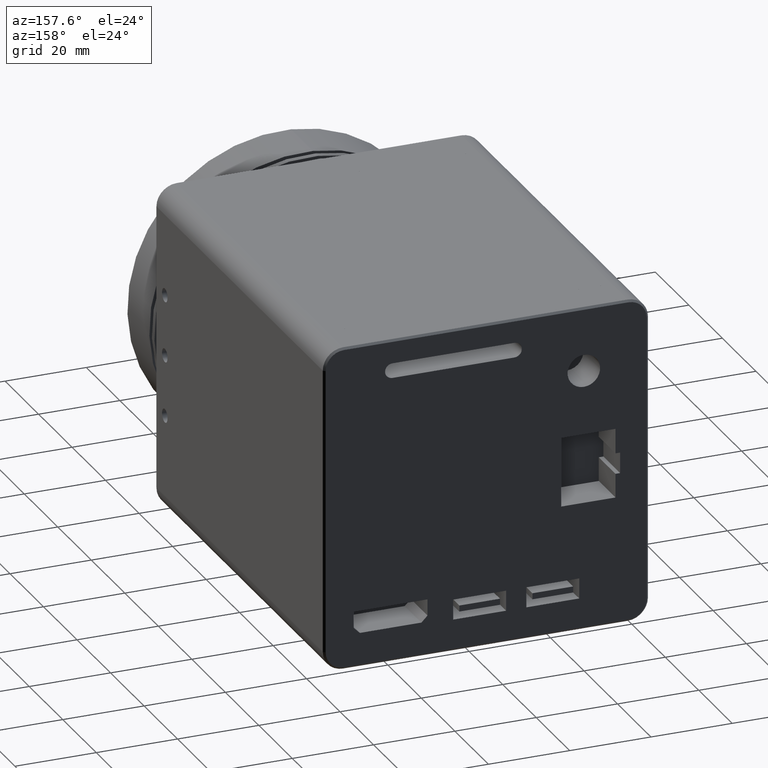
[diagram: clean part render]
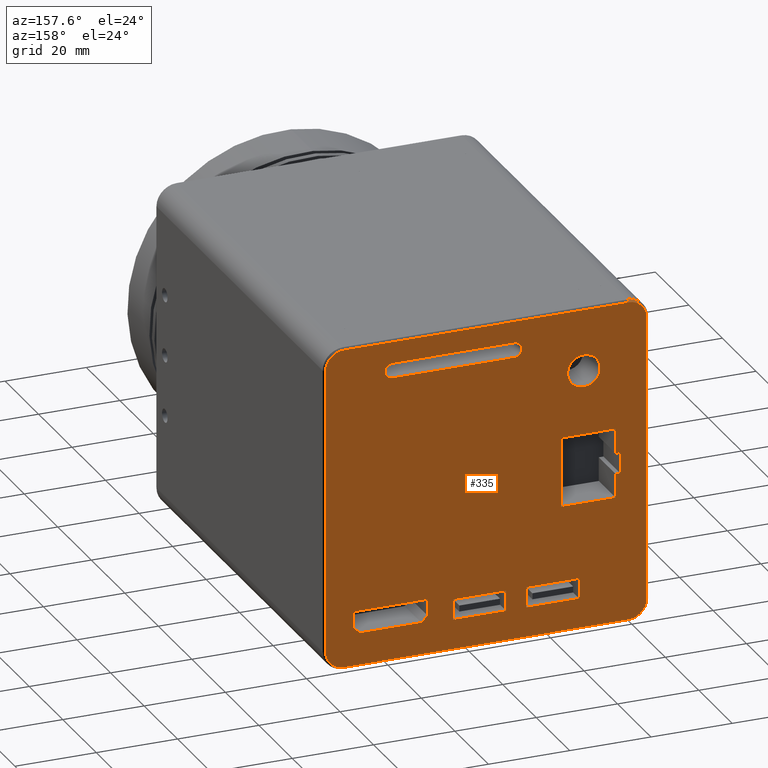
[diagram: same view with one face highlighted and labeled with its STEP entity id]
A machine part, auxiliary view. The second image highlights one B-rep face of the part: STEP entity #335.
In plain terms, the highlighted planar face has unit normal (0, 1, 0).
Its self-contained STEP definition (entity closure, byte-faithful):
#13 = VERTEX_POINT ( 'NONE', #241 ) ;
#16 = VERTEX_POINT ( 'NONE', #1556 ) ;
#17 = CARTESIAN_POINT ( 'NONE',  ( -5.596069762630644817, 63.60462753950338310, -32.18034408215361708 ) ) ;
#39 = VECTOR ( 'NONE', #3091, 1000.000000000000000 ) ;
#77 = VERTEX_POINT ( 'NONE', #2807 ) ;
#80 = CARTESIAN_POINT ( 'NONE',  ( 56.80124153498871209, 63.60462753950338310, -34.99999999999997868 ) ) ;
#96 = VERTEX_POINT ( 'NONE', #2365 ) ;
#97 = DIRECTION ( 'NONE',  ( 1.000000000000000000, 0.000000000000000000, 3.821893742971608445E-16 ) ) ;
#101 = LINE ( 'NONE', #132, #1257 ) ;
#104 = CARTESIAN_POINT ( 'NONE',  ( -17.69875846501125238, 63.60462753950338310, -39.50000000000000000 ) ) ;
#108 = CARTESIAN_POINT ( 'NONE',  ( -15.65465298148207474, 63.60462753950338310, -2.650576703533005229 ) ) ;
#126 = CARTESIAN_POINT ( 'NONE',  ( -6.737217932631413220, 63.60462753950338310, 28.31412987435849971 ) ) ;
#132 = CARTESIAN_POINT ( 'NONE',  ( 31.73906976340431285, 63.60462753950338310, -30.09904818078874200 ) ) ;
#133 = DIRECTION ( 'NONE',  ( -1.000000000000000000, -0.000000000000000000, -0.000000000000000000 ) ) ;
#137 = FACE_OUTER_BOUND ( 'NONE', #2646, .T. ) ;
#141 = EDGE_CURVE ( 'NONE', #620, #3427, #518, .T. ) ;
#142 = VECTOR ( 'NONE', #770, 1000.000000000000000 ) ;
#144 = DIRECTION ( 'NONE',  ( 0.000000000000000000, 1.000000000000000000, 0.000000000000000000 ) ) ;
#151 = LINE ( 'NONE', #3020, #3176 ) ;
#153 = CARTESIAN_POINT ( 'NONE',  ( -6.737217932631413220, 63.60462753950338310, 24.31412987435849971 ) ) ;
#175 = CARTESIAN_POINT ( 'NONE',  ( 25.40393023736935163, 63.60462753950338310, -32.18034408215361708 ) ) ;
#179 = DIRECTION ( 'NONE',  ( 0.000000000000000000, 0.000000000000000000, 1.000000000000000000 ) ) ;
#188 = ORIENTED_EDGE ( 'NONE', *, *, #517, .F. ) ;
#202 = CARTESIAN_POINT ( 'NONE',  ( -17.69875846501125238, 63.60462753950338310, -39.50000000000000000 ) ) ;
#223 = CARTESIAN_POINT ( 'NONE',  ( 31.73906976340431285, 63.60462753950338310, -26.06312775840561358 ) ) ;
#226 = VERTEX_POINT ( 'NONE', #571 ) ;
#231 = EDGE_CURVE ( 'NONE', #226, #2682, #1242, .T. ) ;
#240 = LINE ( 'NONE', #3423, #1311 ) ;
#241 = CARTESIAN_POINT ( 'NONE',  ( 25.40393023736935518, 63.60462753950338310, -27.18034408215362063 ) ) ;
#250 = EDGE_CURVE ( 'NONE', #1598, #2708, #1387, .T. ) ;
#256 = DIRECTION ( 'NONE',  ( 6.938893903907232322E-16, 0.000000000000000000, 1.000000000000000000 ) ) ;
#274 = CARTESIAN_POINT ( 'NONE',  ( 52.30124153498868367, 63.60462753950338310, -39.50000000000000000 ) ) ;
#296 = DIRECTION ( 'NONE',  ( -0.000000000000000000, -0.000000000000000000, -1.000000000000000000 ) ) ;
#304 = LINE ( 'NONE', #2636, #1639 ) ;
#319 = EDGE_CURVE ( 'NONE', #1782, #1052, #2920, .T. ) ;
#331 = VERTEX_POINT ( 'NONE', #175 ) ;
#335 = ADVANCED_FACE ( 'NONE', ( #2207, #1726, #1467, #887, #3267, #409, #137 ), #433, .T. ) ;
#343 = DIRECTION ( 'NONE',  ( 1.000000000000000000, 0.000000000000000000, 0.000000000000000000 ) ) ;
#363 = VERTEX_POINT ( 'NONE', #108 ) ;
#388 = CARTESIAN_POINT ( 'NONE',  ( 10.35434728517189207, 63.60462753950338310, 32.36370575113038228 ) ) ;
#390 = CARTESIAN_POINT ( 'NONE',  ( 31.73906976340431285, 63.60462753950338310, -26.06312775840561358 ) ) ;
#408 = ORIENTED_EDGE ( 'NONE', *, *, #711, .F. ) ;
#409 = FACE_BOUND ( 'NONE', #1882, .T. ) ;
#417 = CARTESIAN_POINT ( 'NONE',  ( 31.73906976340431285, 63.60462753950338310, -30.09904818078874200 ) ) ;
#433 = PLANE ( 'NONE',  #1015 ) ;
#455 = DIRECTION ( 'NONE',  ( 0.000000000000000000, 0.000000000000000000, 1.000000000000000000 ) ) ;
#460 = CARTESIAN_POINT ( 'NONE',  ( 40.35434728517189029, 63.60462753950338310, 32.36370575113038228 ) ) ;
#478 = CARTESIAN_POINT ( 'NONE',  ( 10.35434728517189207, 63.60462753950338310, 30.53370575113038043 ) ) ;
#497 = VECTOR ( 'NONE', #1088, 1000.000000000000000 ) ;
#499 = DIRECTION ( 'NONE',  ( -1.000000000000000000, 0.000000000000000000, 0.000000000000000000 ) ) ;
#502 = EDGE_LOOP ( 'NONE', ( #2171, #2542, #1293, #2611 ) ) ;
#510 = CARTESIAN_POINT ( 'NONE',  ( 12.40393023736935696, 63.60462753950338310, -27.18034408215362063 ) ) ;
#517 = EDGE_CURVE ( 'NONE', #3427, #2517, #3128, .T. ) ;
#518 = LINE ( 'NONE', #2622, #3017 ) ;
#538 = ORIENTED_EDGE ( 'NONE', *, *, #141, .F. ) ;
#543 = VECTOR ( 'NONE', #499, 1000.000000000000000 ) ;
#550 = VECTOR ( 'NONE', #714, 1000.000000000000000 ) ;
#554 = CARTESIAN_POINT ( 'NONE',  ( 49.88458670343788981, 63.60462753950338310, -30.09904818078874200 ) ) ;
#561 = CARTESIAN_POINT ( 'NONE',  ( -14.51992528322585585, 63.60462753950338310, 8.546483831395075725 ) ) ;
#571 = CARTESIAN_POINT ( 'NONE',  ( -22.19875846501127015, 63.60462753950338310, 34.99999999999997158 ) ) ;
#582 = AXIS2_PLACEMENT_3D ( 'NONE', #2140, #2378, #2696 ) ;
#610 = VERTEX_POINT ( 'NONE', #2641 ) ;
#620 = VERTEX_POINT ( 'NONE', #2136 ) ;
#627 = CARTESIAN_POINT ( 'NONE',  ( 48.38458670343788981, 63.60462753950338310, -31.59904818078874200 ) ) ;
#630 = LINE ( 'NONE', #2768, #1373 ) ;
#641 = AXIS2_PLACEMENT_3D ( 'NONE', #2726, #2205, #3265 ) ;
#693 = VERTEX_POINT ( 'NONE', #1163 ) ;
#703 = VERTEX_POINT ( 'NONE', #2740 ) ;
#711 = EDGE_CURVE ( 'NONE', #3161, #3270, #151, .T. ) ;
#714 = DIRECTION ( 'NONE',  ( 1.000000000000000000, 0.000000000000000000, 0.000000000000000000 ) ) ;
#718 = CARTESIAN_POINT ( 'NONE',  ( -17.69875846501127370, 63.60462753950338310, 39.50000000000000711 ) ) ;
#720 = DIRECTION ( 'NONE',  ( 6.938893903907232322E-16, 0.000000000000000000, 1.000000000000000000 ) ) ;
#739 = VERTEX_POINT ( 'NONE', #104 ) ;
#740 = ORIENTED_EDGE ( 'NONE', *, *, #2652, .F. ) ;
#743 = VERTEX_POINT ( 'NONE', #1964 ) ;
#753 = CIRCLE ( 'NONE', #2298, 1.829999999999998295 ) ;
#766 = CIRCLE ( 'NONE', #3197, 4.499999999999997335 ) ;
#770 = DIRECTION ( 'NONE',  ( 0.000000000000000000, 0.000000000000000000, 1.000000000000000000 ) ) ;
#771 = ORIENTED_EDGE ( 'NONE', *, *, #3290, .T. ) ;
#796 = VECTOR ( 'NONE', #296, 1000.000000000000000 ) ;
#808 = EDGE_LOOP ( 'NONE', ( #3296, #740, #2827, #2979, #408, #2092 ) ) ;
#811 = EDGE_CURVE ( 'NONE', #363, #3216, #1215, .T. ) ;
#816 = EDGE_CURVE ( 'NONE', #1164, #1081, #2076, .T. ) ;
#829 = CARTESIAN_POINT ( 'NONE',  ( 48.38458670343788981, 63.60462753950338310, -31.59904818078874200 ) ) ;
#831 = VERTEX_POINT ( 'NONE', #1828 ) ;
#844 = DIRECTION ( 'NONE',  ( 1.000000000000000000, 0.000000000000000000, 0.000000000000000000 ) ) ;
#872 = CARTESIAN_POINT ( 'NONE',  ( -15.65465298148207474, 63.60462753950338310, -2.650576703533005229 ) ) ;
#880 = EDGE_CURVE ( 'NONE', #743, #610, #1076, .T. ) ;
#881 = DIRECTION ( 'NONE',  ( 0.000000000000000000, 0.000000000000000000, 1.000000000000000000 ) ) ;
#887 = FACE_BOUND ( 'NONE', #1167, .T. ) ;
#899 = VERTEX_POINT ( 'NONE', #1759 ) ;
#944 = LINE ( 'NONE', #2278, #1752 ) ;
#960 = VECTOR ( 'NONE', #2954, 1000.000000000000000 ) ;
#964 = EDGE_CURVE ( 'NONE', #2397, #2263, #2033, .T. ) ;
#970 = LINE ( 'NONE', #2031, #2414 ) ;
#978 = VECTOR ( 'NONE', #2878, 1000.000000000000000 ) ;
#980 = ORIENTED_EDGE ( 'NONE', *, *, #2377, .F. ) ;
#991 = DIRECTION ( 'NONE',  ( 0.000000000000000000, 1.000000000000000000, 0.000000000000000000 ) ) ;
#1015 = AXIS2_PLACEMENT_3D ( 'NONE', #3042, #3283, #3057 ) ;
#1027 = EDGE_CURVE ( 'NONE', #610, #1164, #304, .T. ) ;
#1037 = CARTESIAN_POINT ( 'NONE',  ( 33.23906976340431640, 63.60462753950338310, -31.59904818078874200 ) ) ;
#1051 = DIRECTION ( 'NONE',  ( -1.000000000000000000, -0.000000000000000000, -0.000000000000000000 ) ) ;
#1052 = VERTEX_POINT ( 'NONE', #1895 ) ;
#1055 = DIRECTION ( 'NONE',  ( -0.000000000000000000, -0.000000000000000000, -1.000000000000000000 ) ) ;
#1076 = CIRCLE ( 'NONE', #2624, 4.499999999999997335 ) ;
#1081 = VERTEX_POINT ( 'NONE', #274 ) ;
#1088 = DIRECTION ( 'NONE',  ( 1.000000000000000000, 0.000000000000000000, 0.000000000000000000 ) ) ;
#1099 = VERTEX_POINT ( 'NONE', #2372 ) ;
#1106 = ORIENTED_EDGE ( 'NONE', *, *, #1278, .F. ) ;
#1136 = ORIENTED_EDGE ( 'NONE', *, *, #1027, .T. ) ;
#1141 = CARTESIAN_POINT ( 'NONE',  ( -14.51992528322585585, 63.60462753950338310, -2.650576703533005229 ) ) ;
#1150 = ORIENTED_EDGE ( 'NONE', *, *, #2290, .T. ) ;
#1157 = CARTESIAN_POINT ( 'NONE',  ( 40.35434728517189029, 63.60462753950338310, 30.53370575113038043 ) ) ;
#1163 = CARTESIAN_POINT ( 'NONE',  ( 10.35434728517189207, 63.60462753950338310, 34.19370575113037347 ) ) ;
#1164 = VERTEX_POINT ( 'NONE', #80 ) ;
#1167 = EDGE_LOOP ( 'NONE', ( #2499, #2716, #2366, #3130, #3384, #2427, #188, #538 ) ) ;
#1172 = LINE ( 'NONE', #1141, #3369 ) ;
#1195 = DIRECTION ( 'NONE',  ( 1.000000000000000000, 0.000000000000000000, 0.000000000000000000 ) ) ;
#1202 = VERTEX_POINT ( 'NONE', #390 ) ;
#1215 = LINE ( 'NONE', #872, #3350 ) ;
#1242 = CIRCLE ( 'NONE', #582, 4.499999999999997335 ) ;
#1246 = DIRECTION ( 'NONE',  ( 0.000000000000000000, 0.000000000000000000, 1.000000000000000000 ) ) ;
#1254 = CARTESIAN_POINT ( 'NONE',  ( -22.19875846501127725, 63.60462753950338310, 34.99999999999997158 ) ) ;
#1257 = VECTOR ( 'NONE', #3051, 1000.000000000000114 ) ;
#1262 = VERTEX_POINT ( 'NONE', #2598 ) ;
#1278 = EDGE_CURVE ( 'NONE', #331, #2397, #2580, .T. ) ;
#1279 = ORIENTED_EDGE ( 'NONE', *, *, #2024, .F. ) ;
#1291 = EDGE_LOOP ( 'NONE', ( #2078, #2343, #1492, #1106 ) ) ;
#1293 = ORIENTED_EDGE ( 'NONE', *, *, #1401, .F. ) ;
#1311 = VECTOR ( 'NONE', #256, 1000.000000000000000 ) ;
#1318 = CIRCLE ( 'NONE', #1545, 1.829999999999998295 ) ;
#1331 = CARTESIAN_POINT ( 'NONE',  ( 10.35434728517189207, 63.60462753950338310, 30.53370575113038043 ) ) ;
#1338 = LINE ( 'NONE', #1907, #1381 ) ;
#1340 = DIRECTION ( 'NONE',  ( 0.000000000000000000, 0.000000000000000000, -1.000000000000000000 ) ) ;
#1354 = CARTESIAN_POINT ( 'NONE',  ( -15.65465298148207474, 63.60462753950338310, 2.452624897441086471 ) ) ;
#1373 = VECTOR ( 'NONE', #1195, 1000.000000000000000 ) ;
#1381 = VECTOR ( 'NONE', #1055, 1000.000000000000000 ) ;
#1387 = LINE ( 'NONE', #1331, #960 ) ;
#1401 = EDGE_CURVE ( 'NONE', #3334, #1598, #753, .T. ) ;
#1420 = ORIENTED_EDGE ( 'NONE', *, *, #2607, .T. ) ;
#1465 = ORIENTED_EDGE ( 'NONE', *, *, #2186, .F. ) ;
#1467 = FACE_BOUND ( 'NONE', #3221, .T. ) ;
#1469 = VECTOR ( 'NONE', #720, 1000.000000000000000 ) ;
#1492 = ORIENTED_EDGE ( 'NONE', *, *, #964, .F. ) ;
#1540 = ORIENTED_EDGE ( 'NONE', *, *, #2546, .T. ) ;
#1545 = AXIS2_PLACEMENT_3D ( 'NONE', #388, #144, #881 ) ;
#1551 = DIRECTION ( 'NONE',  ( 0.000000000000000000, 1.000000000000000000, 0.000000000000000000 ) ) ;
#1556 = CARTESIAN_POINT ( 'NONE',  ( -22.19875846501129146, 63.60462753950338310, -34.99999999999997868 ) ) ;
#1579 = CARTESIAN_POINT ( 'NONE',  ( 40.35434728517189029, 63.60462753950338310, 34.19370575113038058 ) ) ;
#1589 = CARTESIAN_POINT ( 'NONE',  ( 12.40393023736935341, 63.60462753950338310, -32.18034408215361708 ) ) ;
#1598 = VERTEX_POINT ( 'NONE', #1157 ) ;
#1599 = VECTOR ( 'NONE', #97, 1000.000000000000000 ) ;
#1625 = EDGE_CURVE ( 'NONE', #693, #3334, #3287, .T. ) ;
#1639 = VECTOR ( 'NONE', #1340, 1000.000000000000000 ) ;
#1670 = CARTESIAN_POINT ( 'NONE',  ( 10.35434728517189207, 63.60462753950338310, 34.19370575113038058 ) ) ;
#1678 = ORIENTED_EDGE ( 'NONE', *, *, #2679, .F. ) ;
#1686 = CARTESIAN_POINT ( 'NONE',  ( -15.65465298148207474, 63.60462753950338310, 2.452624897441086471 ) ) ;
#1706 = CARTESIAN_POINT ( 'NONE',  ( -14.51992528322585585, 63.60462753950338310, -2.650576703533005229 ) ) ;
#1723 = DIRECTION ( 'NONE',  ( 0.000000000000000000, 0.000000000000000000, 1.000000000000000000 ) ) ;
#1726 = FACE_BOUND ( 'NONE', #1291, .T. ) ;
#1731 = LINE ( 'NONE', #417, #1810 ) ;
#1752 = VECTOR ( 'NONE', #179, 1000.000000000000000 ) ;
#1759 = CARTESIAN_POINT ( 'NONE',  ( 31.73906976340431285, 63.60462753950338310, -30.09904818078874200 ) ) ;
#1779 = CARTESIAN_POINT ( 'NONE',  ( 12.40393023736935696, 63.60462753950338310, -27.18034408215362063 ) ) ;
#1782 = VERTEX_POINT ( 'NONE', #2521 ) ;
#1788 = EDGE_CURVE ( 'NONE', #1262, #1099, #944, .T. ) ;
#1810 = VECTOR ( 'NONE', #455, 1000.000000000000000 ) ;
#1811 = DIRECTION ( 'NONE',  ( 0.000000000000000000, 1.000000000000000000, 0.000000000000000000 ) ) ;
#1828 = CARTESIAN_POINT ( 'NONE',  ( 7.403930237369356071, 63.60462753950338310, -27.18034408215362063 ) ) ;
#1832 = EDGE_CURVE ( 'NONE', #899, #1202, #1731, .T. ) ;
#1839 = CARTESIAN_POINT ( 'NONE',  ( -17.69875846501128791, 63.60462753950338310, -35.00000000000000000 ) ) ;
#1862 = CARTESIAN_POINT ( 'NONE',  ( 25.40393023736935518, 63.60462753950338310, -32.18034408215361708 ) ) ;
#1882 = EDGE_LOOP ( 'NONE', ( #1279 ) ) ;
#1895 = CARTESIAN_POINT ( 'NONE',  ( 49.88458670343788981, 63.60462753950338310, -30.09904818078874200 ) ) ;
#1897 = EDGE_CURVE ( 'NONE', #2570, #77, #2610, .T. ) ;
#1907 = CARTESIAN_POINT ( 'NONE',  ( -1.171567029984645014, 63.60462753950338310, -8.546483831395088160 ) ) ;
#1926 = CARTESIAN_POINT ( 'NONE',  ( -14.51992528322585585, 63.60462753950338310, -8.546483831395088160 ) ) ;
#1927 = VECTOR ( 'NONE', #3125, 1000.000000000000000 ) ;
#1934 = DIRECTION ( 'NONE',  ( 0.000000000000000000, 0.000000000000000000, 1.000000000000000000 ) ) ;
#1964 = CARTESIAN_POINT ( 'NONE',  ( 52.30124153498869077, 63.60462753950338310, 39.50000000000000711 ) ) ;
#1992 = DIRECTION ( 'NONE',  ( -1.000000000000000000, -0.000000000000000000, -0.000000000000000000 ) ) ;
#2024 = EDGE_CURVE ( 'NONE', #2730, #2730, #2086, .T. ) ;
#2026 = ORIENTED_EDGE ( 'NONE', *, *, #880, .T. ) ;
#2031 = CARTESIAN_POINT ( 'NONE',  ( 7.403930237369356071, 63.60462753950338310, -32.18034408215361708 ) ) ;
#2033 = LINE ( 'NONE', #2841, #1469 ) ;
#2049 = LINE ( 'NONE', #223, #978 ) ;
#2064 = CARTESIAN_POINT ( 'NONE',  ( 7.403930237369356071, 63.60462753950338310, -32.18034408215361708 ) ) ;
#2076 = CIRCLE ( 'NONE', #641, 4.499999999999997335 ) ;
#2078 = ORIENTED_EDGE ( 'NONE', *, *, #2415, .F. ) ;
#2086 = CIRCLE ( 'NONE', #2971, 4.000000000000000000 ) ;
#2092 = ORIENTED_EDGE ( 'NONE', *, *, #2763, .F. ) ;
#2134 = LINE ( 'NONE', #2637, #2361 ) ;
#2136 = CARTESIAN_POINT ( 'NONE',  ( -1.171567029984645014, 63.60462753950338310, -8.546483831395088160 ) ) ;
#2140 = CARTESIAN_POINT ( 'NONE',  ( -17.69875846501127370, 63.60462753950338310, 35.00000000000000000 ) ) ;
#2171 = ORIENTED_EDGE ( 'NONE', *, *, #2871, .F. ) ;
#2186 = EDGE_CURVE ( 'NONE', #77, #96, #240, .T. ) ;
#2205 = DIRECTION ( 'NONE',  ( 0.000000000000000000, 1.000000000000000000, 0.000000000000000000 ) ) ;
#2207 = FACE_BOUND ( 'NONE', #808, .T. ) ;
#2247 = VECTOR ( 'NONE', #2913, 1000.000000000000000 ) ;
#2263 = VERTEX_POINT ( 'NONE', #1779 ) ;
#2271 = DIRECTION ( 'NONE',  ( 0.000000000000000000, 1.000000000000000000, 0.000000000000000000 ) ) ;
#2278 = CARTESIAN_POINT ( 'NONE',  ( -14.51992528322585585, 63.60462753950338310, 2.452624897441086915 ) ) ;
#2290 = EDGE_CURVE ( 'NONE', #16, #226, #2584, .T. ) ;
#2298 = AXIS2_PLACEMENT_3D ( 'NONE', #460, #991, #2877 ) ;
#2343 = ORIENTED_EDGE ( 'NONE', *, *, #3341, .F. ) ;
#2361 = VECTOR ( 'NONE', #343, 1000.000000000000000 ) ;
#2365 = CARTESIAN_POINT ( 'NONE',  ( -5.596069762630641264, 63.60462753950338310, -27.18034408215362063 ) ) ;
#2366 = ORIENTED_EDGE ( 'NONE', *, *, #1788, .F. ) ;
#2372 = CARTESIAN_POINT ( 'NONE',  ( -14.51992528322585585, 63.60462753950338310, 8.546483831395075725 ) ) ;
#2377 = EDGE_CURVE ( 'NONE', #96, #831, #2134, .T. ) ;
#2378 = DIRECTION ( 'NONE',  ( 0.000000000000000000, 1.000000000000000000, 0.000000000000000000 ) ) ;
#2397 = VERTEX_POINT ( 'NONE', #1589 ) ;
#2409 = LINE ( 'NONE', #1862, #2247 ) ;
#2414 = VECTOR ( 'NONE', #3092, 1000.000000000000000 ) ;
#2415 = EDGE_CURVE ( 'NONE', #13, #331, #2409, .T. ) ;
#2426 = LINE ( 'NONE', #561, #497 ) ;
#2427 = ORIENTED_EDGE ( 'NONE', *, *, #2884, .F. ) ;
#2443 = EDGE_CURVE ( 'NONE', #3270, #899, #101, .T. ) ;
#2499 = ORIENTED_EDGE ( 'NONE', *, *, #2759, .F. ) ;
#2517 = VERTEX_POINT ( 'NONE', #1706 ) ;
#2521 = CARTESIAN_POINT ( 'NONE',  ( 49.88458670343788981, 63.60462753950338310, -26.06312775840561358 ) ) ;
#2542 = ORIENTED_EDGE ( 'NONE', *, *, #250, .F. ) ;
#2546 = EDGE_CURVE ( 'NONE', #2682, #743, #630, .T. ) ;
#2550 = ORIENTED_EDGE ( 'NONE', *, *, #231, .T. ) ;
#2570 = VERTEX_POINT ( 'NONE', #2064 ) ;
#2580 = LINE ( 'NONE', #3400, #39 ) ;
#2584 = LINE ( 'NONE', #1254, #1927 ) ;
#2598 = CARTESIAN_POINT ( 'NONE',  ( -14.51992528322585585, 63.60462753950338310, 2.452624897441086915 ) ) ;
#2607 = EDGE_CURVE ( 'NONE', #1081, #739, #2861, .T. ) ;
#2610 = LINE ( 'NONE', #17, #2633 ) ;
#2611 = ORIENTED_EDGE ( 'NONE', *, *, #1625, .F. ) ;
#2622 = CARTESIAN_POINT ( 'NONE',  ( -14.51992528322585585, 63.60462753950338310, -8.546483831395088160 ) ) ;
#2624 = AXIS2_PLACEMENT_3D ( 'NONE', #3351, #1811, #2863 ) ;
#2633 = VECTOR ( 'NONE', #1051, 1000.000000000000000 ) ;
#2636 = CARTESIAN_POINT ( 'NONE',  ( 56.80124153498871209, 63.60462753950338310, -34.99999999999997158 ) ) ;
#2637 = CARTESIAN_POINT ( 'NONE',  ( -5.596069762630641264, 63.60462753950338310, -27.18034408215362063 ) ) ;
#2640 = VECTOR ( 'NONE', #2666, 1000.000000000000114 ) ;
#2641 = CARTESIAN_POINT ( 'NONE',  ( 56.80124153498871209, 63.60462753950338310, 35.00000000000000000 ) ) ;
#2646 = EDGE_LOOP ( 'NONE', ( #2955, #1420, #771, #1150, #2550, #1540, #2026, #1136 ) ) ;
#2651 = LINE ( 'NONE', #1354, #1599 ) ;
#2652 = EDGE_CURVE ( 'NONE', #1202, #1782, #2049, .T. ) ;
#2666 = DIRECTION ( 'NONE',  ( -0.7071067811865474617, -0.000000000000000000, -0.7071067811865474617 ) ) ;
#2679 = EDGE_CURVE ( 'NONE', #831, #2570, #970, .T. ) ;
#2682 = VERTEX_POINT ( 'NONE', #718 ) ;
#2696 = DIRECTION ( 'NONE',  ( 0.000000000000000000, 0.000000000000000000, 1.000000000000000000 ) ) ;
#2708 = VERTEX_POINT ( 'NONE', #478 ) ;
#2716 = ORIENTED_EDGE ( 'NONE', *, *, #2805, .F. ) ;
#2726 = CARTESIAN_POINT ( 'NONE',  ( 52.30124153498871920, 63.60462753950338310, -35.00000000000000000 ) ) ;
#2730 = VERTEX_POINT ( 'NONE', #126 ) ;
#2740 = CARTESIAN_POINT ( 'NONE',  ( -1.171567029984645014, 63.60462753950338310, 8.546483831395075725 ) ) ;
#2759 = EDGE_CURVE ( 'NONE', #703, #620, #1338, .T. ) ;
#2763 = EDGE_CURVE ( 'NONE', #1052, #3161, #2944, .T. ) ;
#2768 = CARTESIAN_POINT ( 'NONE',  ( 52.30124153498868367, 63.60462753950338310, 39.50000000000000711 ) ) ;
#2805 = EDGE_CURVE ( 'NONE', #1099, #703, #2426, .T. ) ;
#2807 = CARTESIAN_POINT ( 'NONE',  ( -5.596069762630644817, 63.60462753950338310, -32.18034408215361708 ) ) ;
#2827 = ORIENTED_EDGE ( 'NONE', *, *, #1832, .F. ) ;
#2841 = CARTESIAN_POINT ( 'NONE',  ( 12.40393023736935341, 63.60462753950338310, -32.18034408215361708 ) ) ;
#2861 = LINE ( 'NONE', #202, #543 ) ;
#2863 = DIRECTION ( 'NONE',  ( 0.000000000000000000, 0.000000000000000000, 1.000000000000000000 ) ) ;
#2871 = EDGE_CURVE ( 'NONE', #2708, #693, #1318, .T. ) ;
#2876 = LINE ( 'NONE', #510, #550 ) ;
#2877 = DIRECTION ( 'NONE',  ( 0.000000000000000000, 0.000000000000000000, 1.000000000000000000 ) ) ;
#2878 = DIRECTION ( 'NONE',  ( 1.000000000000000000, 0.000000000000000000, 0.000000000000000000 ) ) ;
#2884 = EDGE_CURVE ( 'NONE', #2517, #363, #1172, .T. ) ;
#2902 = ORIENTED_EDGE ( 'NONE', *, *, #1897, .F. ) ;
#2913 = DIRECTION ( 'NONE',  ( -0.000000000000000000, -0.000000000000000000, -1.000000000000000000 ) ) ;
#2920 = LINE ( 'NONE', #554, #796 ) ;
#2944 = LINE ( 'NONE', #829, #2640 ) ;
#2954 = DIRECTION ( 'NONE',  ( -1.000000000000000000, -0.000000000000000000, -0.000000000000000000 ) ) ;
#2955 = ORIENTED_EDGE ( 'NONE', *, *, #816, .T. ) ;
#2971 = AXIS2_PLACEMENT_3D ( 'NONE', #153, #2271, #1723 ) ;
#2979 = ORIENTED_EDGE ( 'NONE', *, *, #2443, .F. ) ;
#3017 = VECTOR ( 'NONE', #1992, 1000.000000000000000 ) ;
#3020 = CARTESIAN_POINT ( 'NONE',  ( 33.23906976340431640, 63.60462753950338310, -31.59904818078874200 ) ) ;
#3036 = EDGE_CURVE ( 'NONE', #3216, #1262, #2651, .T. ) ;
#3042 = CARTESIAN_POINT ( 'NONE',  ( 52.30124153498871920, 63.60462753950338310, -35.00000000000000000 ) ) ;
#3051 = DIRECTION ( 'NONE',  ( -0.7071067811865474617, -0.000000000000000000, 0.7071067811865474617 ) ) ;
#3057 = DIRECTION ( 'NONE',  ( 0.000000000000000000, -0.000000000000000000, 1.000000000000000000 ) ) ;
#3091 = DIRECTION ( 'NONE',  ( -1.000000000000000000, -0.000000000000000000, -0.000000000000000000 ) ) ;
#3092 = DIRECTION ( 'NONE',  ( -0.000000000000000000, -0.000000000000000000, -1.000000000000000000 ) ) ;
#3125 = DIRECTION ( 'NONE',  ( 1.982541115402067082E-16, 0.000000000000000000, 1.000000000000000000 ) ) ;
#3128 = LINE ( 'NONE', #3377, #142 ) ;
#3130 = ORIENTED_EDGE ( 'NONE', *, *, #3036, .F. ) ;
#3161 = VERTEX_POINT ( 'NONE', #627 ) ;
#3176 = VECTOR ( 'NONE', #133, 1000.000000000000000 ) ;
#3197 = AXIS2_PLACEMENT_3D ( 'NONE', #1839, #1551, #1246 ) ;
#3216 = VERTEX_POINT ( 'NONE', #1686 ) ;
#3221 = EDGE_LOOP ( 'NONE', ( #1678, #980, #1465, #2902 ) ) ;
#3242 = VECTOR ( 'NONE', #844, 1000.000000000000000 ) ;
#3265 = DIRECTION ( 'NONE',  ( 0.000000000000000000, 0.000000000000000000, 1.000000000000000000 ) ) ;
#3267 = FACE_BOUND ( 'NONE', #502, .T. ) ;
#3270 = VERTEX_POINT ( 'NONE', #1037 ) ;
#3283 = DIRECTION ( 'NONE',  ( 0.000000000000000000, 1.000000000000000000, 0.000000000000000000 ) ) ;
#3287 = LINE ( 'NONE', #1670, #3242 ) ;
#3288 = DIRECTION ( 'NONE',  ( -1.000000000000000000, 0.000000000000000000, 0.000000000000000000 ) ) ;
#3290 = EDGE_CURVE ( 'NONE', #739, #16, #766, .T. ) ;
#3296 = ORIENTED_EDGE ( 'NONE', *, *, #319, .F. ) ;
#3334 = VERTEX_POINT ( 'NONE', #1579 ) ;
#3341 = EDGE_CURVE ( 'NONE', #2263, #13, #2876, .T. ) ;
#3350 = VECTOR ( 'NONE', #1934, 1000.000000000000000 ) ;
#3351 = CARTESIAN_POINT ( 'NONE',  ( 52.30124153498871920, 63.60462753950338310, 35.00000000000000000 ) ) ;
#3369 = VECTOR ( 'NONE', #3288, 1000.000000000000000 ) ;
#3377 = CARTESIAN_POINT ( 'NONE',  ( -14.51992528322585585, 63.60462753950338310, -8.546483831395088160 ) ) ;
#3384 = ORIENTED_EDGE ( 'NONE', *, *, #811, .F. ) ;
#3400 = CARTESIAN_POINT ( 'NONE',  ( 12.40393023736935341, 63.60462753950338310, -32.18034408215361708 ) ) ;
#3423 = CARTESIAN_POINT ( 'NONE',  ( -5.596069762630644817, 63.60462753950338310, -32.18034408215361708 ) ) ;
#3427 = VERTEX_POINT ( 'NONE', #1926 ) ;